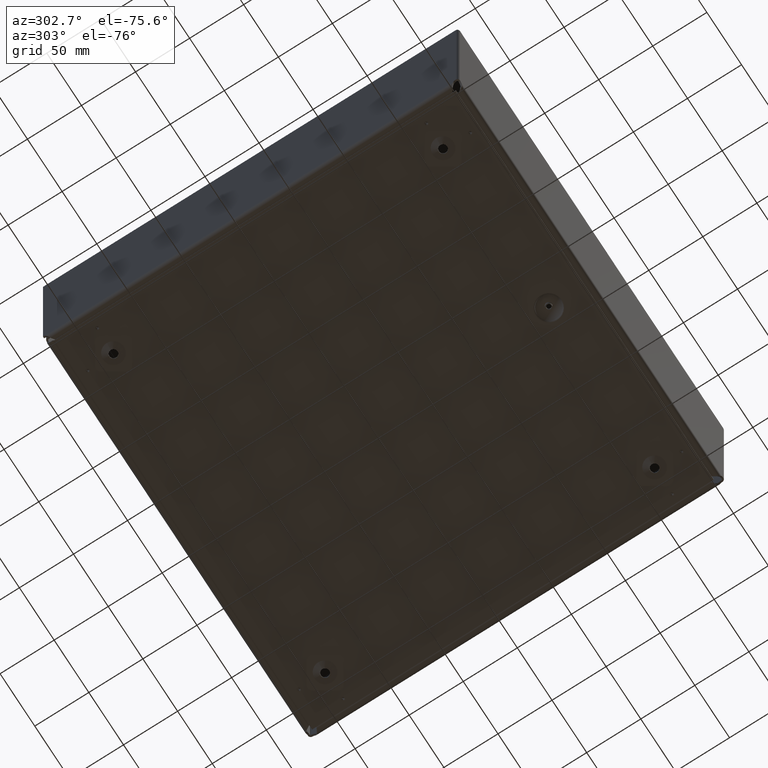
[diagram: clean part render]
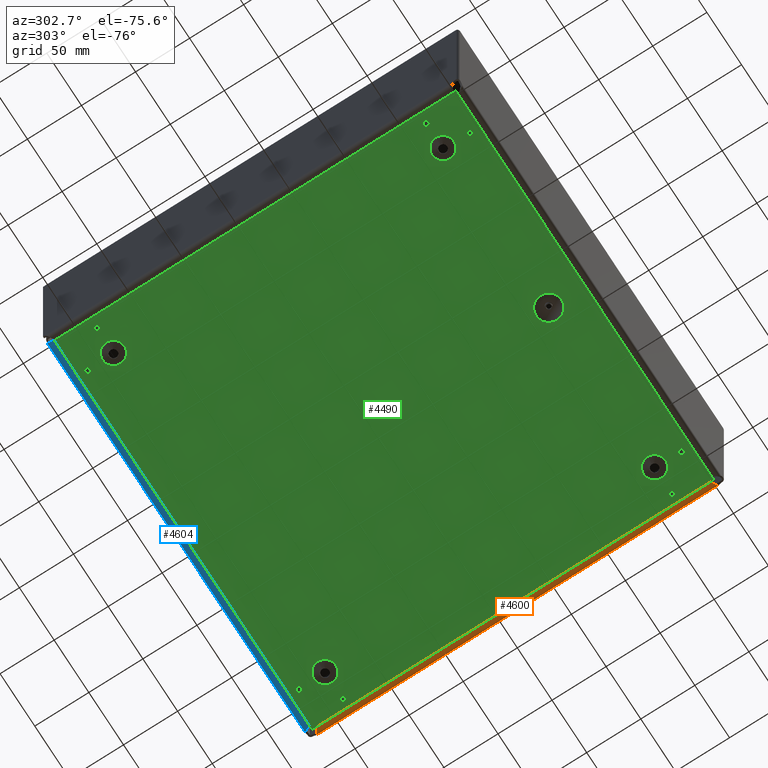
[diagram: same view with three faces highlighted in distinct colors, each labeled with its STEP entity id]
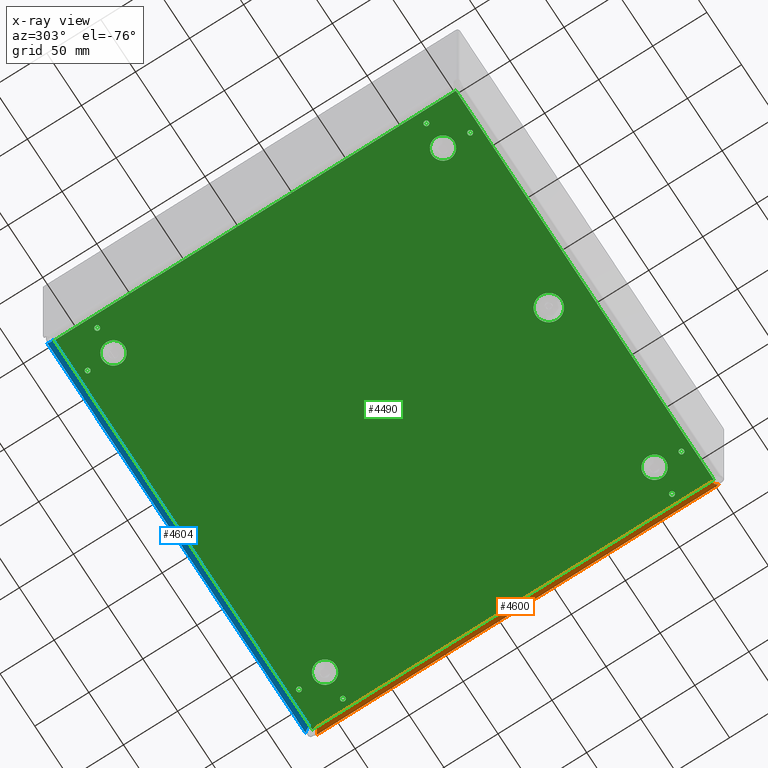
[diagram: x-ray of the same camera — body ghosted, the three highlighted faces saturated]
A machine part, auxiliary view with three faces highlighted in distinct colors.
The next image is the same camera in x-ray (body ghosted, the three faces saturated) — at least one of them is partly hidden behind the body in this view.
Their STEP definitions:

[orange] entity #4600 — the highlighted cylindrical surface (edge-blend (fillet) strip) has radius 3.956 mm, axis along (-0, 1, -0).
#77=B_SPLINE_CURVE_WITH_KNOTS($,3,(#7453,#7454,#7455,#7456,#7457,#7458,
#7459,#7460,#7461,#7462,#7463,#7464,#7465),.UNSPECIFIED.,.F.,.F.,(4,3,3,
3,4),(0.,0.73271112847062,1.46542225694132,1.83177782117667,2.56448894964734),
 .UNSPECIFIED.);
#80=B_SPLINE_CURVE_WITH_KNOTS($,3,(#7533,#7534,#7535,#7536,#7537,#7538,
#7539,#7540,#7541,#7542,#7543,#7544,#7545),.UNSPECIFIED.,.F.,.F.,(4,3,3,
3,4),(0.,0.366355564235345,1.09906669270604,1.83177782117674,2.56448894964732),
 .UNSPECIFIED.);
#361=LINE($,#7821,#712);
#362=LINE($,#7823,#713);
#712=VECTOR($,#5671,14.2780788216739);
#713=VECTOR($,#5674,14.7207532264134);
#1044=CYLINDRICAL_SURFACE($,#4949,0.155749999999782);
#1325=FACE_OUTER_BOUND($,#1668,.T.);
#1668=EDGE_LOOP($,(#3453,#3454,#3455,#3456));
#2164=VERTEX_POINT($,#7406);
#2171=VERTEX_POINT($,#7421);
#2172=VERTEX_POINT($,#7452);
#2179=VERTEX_POINT($,#7531);
#2597=EDGE_CURVE($,#2172,#2171,#77,.T.);
#2606=EDGE_CURVE($,#2164,#2179,#80,.T.);
#2670=EDGE_CURVE($,#2172,#2179,#361,.T.);
#2671=EDGE_CURVE($,#2171,#2164,#362,.T.);
#3453=ORIENTED_EDGE($,*,*,#2606,.T.);
#3454=ORIENTED_EDGE($,*,*,#2670,.F.);
#3455=ORIENTED_EDGE($,*,*,#2597,.T.);
#3456=ORIENTED_EDGE($,*,*,#2671,.T.);
#4600=ADVANCED_FACE($,(#1325),#1044,.T.);
#4949=AXIS2_PLACEMENT_3D($,#7822,#5672,#5673);
#5671=DIRECTION($,(1.,-5.74594200816914E-017,9.47285854941344E-014));
#5672=DIRECTION('center_axis',(-1.,4.15095611572944E-018,-9.46467030761971E-014));
#5673=DIRECTION('ref_axis',(4.15095611559543E-018,1.,1.41375957687081E-015));
#5674=DIRECTION($,(1.,-4.15095611572916E-018,9.46537930789197E-014));
#7406=CARTESIAN_POINT('',(7.38534819743018,3.09375,-29.8970722833427));
#7421=CARTESIAN_POINT('',(-7.33540502898322,3.09375,-29.8970722833441));
#7452=CARTESIAN_POINT('',(-7.12093855384791,3.17872704396148,-30.1833480068609));
#7453=CARTESIAN_POINT('Ctrl Pts',(-7.12093855384791,3.1787270439615,-30.1833480068609));
#7454=CARTESIAN_POINT('Ctrl Pts',(-7.14136393243222,3.21060626068565,-30.1625934649359));
#7455=CARTESIAN_POINT('Ctrl Pts',(-7.16178931101654,3.23444882105545,-30.1296156998862));
#7456=CARTESIAN_POINT('Ctrl Pts',(-7.18221468960085,3.24421127851084,-30.0929629142979));
#7457=CARTESIAN_POINT('Ctrl Pts',(-7.20264006818517,3.25397373596623,-30.0563101287096));
#7458=CARTESIAN_POINT('Ctrl Pts',(-7.22306544676949,3.2496560905072,-30.0159823225826));
#7459=CARTESIAN_POINT('Ctrl Pts',(-7.24349082535381,3.23245064685074,-29.9820768429875));
#7460=CARTESIAN_POINT('Ctrl Pts',(-7.25370351464597,3.2238479250225,-29.9651241031899));
#7461=CARTESIAN_POINT('Ctrl Pts',(-7.26391620393812,3.21202325364491,-29.9497769450253));
#7462=CARTESIAN_POINT('Ctrl Pts',(-7.27412889323028,3.19785302922986,-29.9370999123209));
#7463=CARTESIAN_POINT('Ctrl Pts',(-7.29455427181459,3.16951258039975,-29.911745846912));
#7464=CARTESIAN_POINT('Ctrl Pts',(-7.31497965039891,3.13178991941978,-29.897072283344));
#7465=CARTESIAN_POINT('Ctrl Pts',(-7.33540502898322,3.09375,-29.8970722833441));
#7531=CARTESIAN_POINT('',(7.15714026782595,3.17872704396148,-30.1833480068595));
#7533=CARTESIAN_POINT('Ctrl Pts',(7.38534819743018,3.09375,-29.8970722833427));
#7534=CARTESIAN_POINT('Ctrl Pts',(7.37448115316331,3.11276995970989,-29.8970722833427));
#7535=CARTESIAN_POINT('Ctrl Pts',(7.36361410889644,3.13182284263769,-29.9005055847682));
#7536=CARTESIAN_POINT('Ctrl Pts',(7.35274706462957,3.14956442735704,-29.9073230613626));
#7537=CARTESIAN_POINT('Ctrl Pts',(7.33101297609583,3.18504759679572,-29.9209580145515));
#7538=CARTESIAN_POINT('Ctrl Pts',(7.30927888756209,3.21528557340054,-29.9481296684165));
#7539=CARTESIAN_POINT('Ctrl Pts',(7.28754479902836,3.23252964925188,-29.9819505847785));
#7540=CARTESIAN_POINT('Ctrl Pts',(7.26581071049462,3.24977372510322,-30.0157715011405));
#7541=CARTESIAN_POINT('Ctrl Pts',(7.24407662196088,3.25402390020107,-30.0562416799996));
#7542=CARTESIAN_POINT('Ctrl Pts',(7.22234253342715,3.24423203409667,-30.0929471709481));
#7543=CARTESIAN_POINT('Ctrl Pts',(7.20060844489342,3.23444016799227,-30.1296526618966));
#7544=CARTESIAN_POINT('Ctrl Pts',(7.17887435635969,3.21060626068561,-30.1625934649345));
#7545=CARTESIAN_POINT('Ctrl Pts',(7.15714026782595,3.17872704396147,-30.1833480068595));
#7821=CARTESIAN_POINT($,(2.48969698750586E-013,3.17872704396148,-30.1833480068602));
#7822=CARTESIAN_POINT('Origin',(2.37780049368537E-013,3.09374999999999,
-30.0528222833434));
#7823=CARTESIAN_POINT($,(7.60696485556299,3.09375,-29.8970722833427));

[blue] entity #4604 — the highlighted cylindrical surface (edge-blend (fillet) strip) has radius 3.956 mm, axis along (-1, -0, 0).
#38=ELLIPSE($,#4955,0.220263762339615,0.155749999999998);
#73=B_SPLINE_CURVE_WITH_KNOTS($,3,(#7321,#7322,#7323,#7324,#7325,#7326,
#7327,#7328,#7329,#7330,#7331,#7332,#7333),.UNSPECIFIED.,.F.,.F.,(4,3,3,
3,4),(0.,0.366355564235334,1.09906669270601,1.83177782117669,2.56448894964735),
 .UNSPECIFIED.);
#366=LINE($,#7834,#717);
#373=LINE($,#7848,#724);
#717=VECTOR($,#5686,14.6672593646461);
#724=VECTOR($,#5695,14.3900917625199);
#1046=CYLINDRICAL_SURFACE($,#4954,0.1557499999979);
#1329=FACE_OUTER_BOUND($,#1672,.T.);
#1672=EDGE_LOOP($,(#3479,#3480,#3481,#3482,#3483,#3484));
#1935=CIRCLE($,#4956,0.155750000000038);
#1936=CIRCLE($,#4957,0.15575000000004);
#2147=VERTEX_POINT($,#7271);
#2151=VERTEX_POINT($,#7320);
#2218=VERTEX_POINT($,#7833);
#2224=VERTEX_POINT($,#7847);
#2225=VERTEX_POINT($,#7849);
#2226=VERTEX_POINT($,#7851);
#2572=EDGE_CURVE($,#2151,#2147,#73,.T.);
#2676=EDGE_CURVE($,#2151,#2218,#366,.T.);
#2683=EDGE_CURVE($,#2224,#2147,#373,.T.);
#2684=EDGE_CURVE($,#2225,#2224,#38,.T.);
#2685=EDGE_CURVE($,#2226,#2225,#1935,.T.);
#2686=EDGE_CURVE($,#2218,#2226,#1936,.T.);
#3479=ORIENTED_EDGE($,*,*,#2572,.T.);
#3480=ORIENTED_EDGE($,*,*,#2683,.F.);
#3481=ORIENTED_EDGE($,*,*,#2684,.F.);
#3482=ORIENTED_EDGE($,*,*,#2685,.F.);
#3483=ORIENTED_EDGE($,*,*,#2686,.F.);
#3484=ORIENTED_EDGE($,*,*,#2676,.F.);
#4604=ADVANCED_FACE($,(#1329),#1046,.T.);
#4954=AXIS2_PLACEMENT_3D($,#7846,#5693,#5694);
#4955=AXIS2_PLACEMENT_3D($,#7850,#5696,#5697);
#4956=AXIS2_PLACEMENT_3D($,#7852,#5698,#5699);
#4957=AXIS2_PLACEMENT_3D($,#7853,#5700,#5701);
#5686=DIRECTION($,(6.02376719947043E-014,-4.62700146612674E-031,-1.));
#5693=DIRECTION('center_axis',(6.03083160806297E-014,-7.29422913135787E-030,
-1.));
#5694=DIRECTION('ref_axis',(-2.5678042021844E-014,1.,-1.54991264950235E-027));
#5695=DIRECTION($,(-6.02195600087657E-014,5.77834653387141E-017,1.));
#5696=DIRECTION('center_axis',(0.707106781186614,8.30565910811656E-014,
-0.707106781186481));
#5697=DIRECTION('ref_axis',(0.707106781186481,1.1051453555507E-013,0.707106781186615));
#5698=DIRECTION('center_axis',(6.03083160806297E-014,-7.29422913135787E-030,
-1.));
#5699=DIRECTION('ref_axis',(-4.49022848396713E-014,1.,0.));
#5700=DIRECTION('center_axis',(6.03083160806297E-014,-7.29422913135787E-030,
-1.));
#5701=DIRECTION('ref_axis',(-1.,3.36767136297529E-014,-7.1843655743473E-014));
#7271=CARTESIAN_POINT('',(-7.27622427648296,3.17872704396147,-30.3386337294959));
#7320=CARTESIAN_POINT('',(-7.56249999999976,3.09375,-30.1241672543607));
#7321=CARTESIAN_POINT('Ctrl Pts',(-7.56249999999983,3.09375,-30.1241672543607));
#7322=CARTESIAN_POINT('Ctrl Pts',(-7.56249999999983,3.11276995970989,-30.1343799436528));
#7323=CARTESIAN_POINT('Ctrl Pts',(-7.55906671581271,3.13182283530101,-30.144592632945));
#7324=CARTESIAN_POINT('Ctrl Pts',(-7.55224925228345,3.14956441408007,-30.1548053222371));
#7325=CARTESIAN_POINT('Ctrl Pts',(-7.53861432522495,3.18504757163819,-30.1752307008214));
#7326=CARTESIAN_POINT('Ctrl Pts',(-7.51144268079794,3.21528554194808,-30.1956560794058));
#7327=CARTESIAN_POINT('Ctrl Pts',(-7.47762177586498,3.23252960979849,-30.2160814579901));
#7328=CARTESIAN_POINT('Ctrl Pts',(-7.44380087093202,3.24977367764891,-30.2365068365744));
#7329=CARTESIAN_POINT('Ctrl Pts',(-7.40333070549312,3.25402384303984,-30.2569322151587));
#7330=CARTESIAN_POINT('Ctrl Pts',(-7.3666251923621,3.24423198879903,-30.277357593743));
#7331=CARTESIAN_POINT('Ctrl Pts',(-7.32991967923109,3.23444013455822,-30.2977829723273));
#7332=CARTESIAN_POINT('Ctrl Pts',(-7.29697881840796,3.21060626068566,-30.3182083509116));
#7333=CARTESIAN_POINT('Ctrl Pts',(-7.27622427648292,3.1787270439615,-30.3386337294959));
#7833=CARTESIAN_POINT('',(-7.56249999999887,3.09375,-44.7914266190068));
#7834=CARTESIAN_POINT($,(-7.56249999999977,3.09375,-29.8526074277814));
#7846=CARTESIAN_POINT('Origin',(-7.40674999999931,3.09374999999999,-37.3908744511754));
#7847=CARTESIAN_POINT('',(-7.2762242764821,3.17872704396148,-44.7287254920158));
#7848=CARTESIAN_POINT($,(-7.27622427648253,3.17872704396147,-37.4578786531367));
#7849=CARTESIAN_POINT('',(-7.33892540347311,3.23395658545921,-44.7914266190068));
#7850=CARTESIAN_POINT('Origin',(-7.40674999999579,3.0937499999967,-44.8592512155325));
#7851=CARTESIAN_POINT('',(-7.40674999999887,3.24950000000003,-44.7914266190068));
#7852=CARTESIAN_POINT('Origin',(-7.40674999999887,3.09374999999999,-44.7914266190068));
#7853=CARTESIAN_POINT('Origin',(-7.40674999999887,3.09374999999999,-44.7914266190068));

[green] entity #4490 — the highlighted planar face has unit normal (0, 0, -1).
#223=LINE($,#6441,#574);
#224=LINE($,#6443,#575);
#225=LINE($,#6445,#576);
#226=LINE($,#6446,#577);
#574=VECTOR($,#5245,14.625);
#575=VECTOR($,#5246,14.625);
#576=VECTOR($,#5247,14.625);
#577=VECTOR($,#5248,14.625);
#923=PLANE($,#4798);
#1126=FACE_BOUND($,#1506,.T.);
#1127=FACE_BOUND($,#1507,.T.);
#1128=FACE_BOUND($,#1508,.T.);
#1129=FACE_BOUND($,#1509,.T.);
#1130=FACE_BOUND($,#1510,.T.);
#1131=FACE_BOUND($,#1511,.T.);
#1132=FACE_BOUND($,#1512,.T.);
#1133=FACE_BOUND($,#1513,.T.);
#1134=FACE_BOUND($,#1514,.T.);
#1135=FACE_BOUND($,#1515,.T.);
#1136=FACE_BOUND($,#1516,.T.);
#1137=FACE_BOUND($,#1517,.T.);
#1138=FACE_BOUND($,#1518,.T.);
#1139=FACE_BOUND($,#1519,.T.);
#1506=EDGE_LOOP($,(#3030));
#1507=EDGE_LOOP($,(#3031));
#1508=EDGE_LOOP($,(#3032));
#1509=EDGE_LOOP($,(#3033));
#1510=EDGE_LOOP($,(#3034));
#1511=EDGE_LOOP($,(#3035));
#1512=EDGE_LOOP($,(#3036));
#1513=EDGE_LOOP($,(#3037,#3038,#3039,#3040));
#1514=EDGE_LOOP($,(#3041));
#1515=EDGE_LOOP($,(#3042));
#1516=EDGE_LOOP($,(#3043));
#1517=EDGE_LOOP($,(#3044));
#1518=EDGE_LOOP($,(#3045));
#1519=EDGE_LOOP($,(#3046));
#1846=CIRCLE($,#4767,0.466155628348878);
#1868=CIRCLE($,#4797,0.0898817580215496);
#1869=CIRCLE($,#4799,0.0898817580215494);
#1870=CIRCLE($,#4800,0.0898817580215488);
#1871=CIRCLE($,#4801,0.0898817580215488);
#1872=CIRCLE($,#4802,0.0898817580215494);
#1873=CIRCLE($,#4803,0.402);
#1874=CIRCLE($,#4804,0.402);
#1875=CIRCLE($,#4805,0.402000000000002);
#1876=CIRCLE($,#4806,0.402000000000002);
#1877=CIRCLE($,#4807,0.0898817580215496);
#1878=CIRCLE($,#4808,0.0898817580215488);
#1879=CIRCLE($,#4809,0.0898817580215488);
#1987=VERTEX_POINT($,#6304);
#2013=VERTEX_POINT($,#6424);
#2014=VERTEX_POINT($,#6427);
#2015=VERTEX_POINT($,#6429);
#2016=VERTEX_POINT($,#6431);
#2017=VERTEX_POINT($,#6433);
#2018=VERTEX_POINT($,#6435);
#2019=VERTEX_POINT($,#6437);
#2020=VERTEX_POINT($,#6439);
#2021=VERTEX_POINT($,#6440);
#2022=VERTEX_POINT($,#6442);
#2023=VERTEX_POINT($,#6444);
#2024=VERTEX_POINT($,#6447);
#2025=VERTEX_POINT($,#6449);
#2026=VERTEX_POINT($,#6451);
#2027=VERTEX_POINT($,#6453);
#2028=VERTEX_POINT($,#6455);
#2388=EDGE_CURVE($,#1987,#1987,#1846,.T.);
#2416=EDGE_CURVE($,#2013,#2013,#1868,.T.);
#2417=EDGE_CURVE($,#2014,#2014,#1869,.T.);
#2418=EDGE_CURVE($,#2015,#2015,#1870,.T.);
#2419=EDGE_CURVE($,#2016,#2016,#1871,.T.);
#2420=EDGE_CURVE($,#2017,#2017,#1872,.T.);
#2421=EDGE_CURVE($,#2018,#2018,#1873,.T.);
#2422=EDGE_CURVE($,#2019,#2019,#1874,.T.);
#2423=EDGE_CURVE($,#2020,#2021,#223,.T.);
#2424=EDGE_CURVE($,#2022,#2020,#224,.T.);
#2425=EDGE_CURVE($,#2023,#2022,#225,.T.);
#2426=EDGE_CURVE($,#2021,#2023,#226,.T.);
#2427=EDGE_CURVE($,#2024,#2024,#1875,.T.);
#2428=EDGE_CURVE($,#2025,#2025,#1876,.T.);
#2429=EDGE_CURVE($,#2026,#2026,#1877,.T.);
#2430=EDGE_CURVE($,#2027,#2027,#1878,.T.);
#2431=EDGE_CURVE($,#2028,#2028,#1879,.T.);
#3030=ORIENTED_EDGE($,*,*,#2388,.T.);
#3031=ORIENTED_EDGE($,*,*,#2417,.F.);
#3032=ORIENTED_EDGE($,*,*,#2418,.F.);
#3033=ORIENTED_EDGE($,*,*,#2419,.F.);
#3034=ORIENTED_EDGE($,*,*,#2420,.F.);
#3035=ORIENTED_EDGE($,*,*,#2421,.T.);
#3036=ORIENTED_EDGE($,*,*,#2422,.T.);
#3037=ORIENTED_EDGE($,*,*,#2423,.F.);
#3038=ORIENTED_EDGE($,*,*,#2424,.F.);
#3039=ORIENTED_EDGE($,*,*,#2425,.F.);
#3040=ORIENTED_EDGE($,*,*,#2426,.F.);
#3041=ORIENTED_EDGE($,*,*,#2427,.T.);
#3042=ORIENTED_EDGE($,*,*,#2428,.T.);
#3043=ORIENTED_EDGE($,*,*,#2429,.F.);
#3044=ORIENTED_EDGE($,*,*,#2430,.F.);
#3045=ORIENTED_EDGE($,*,*,#2431,.F.);
#3046=ORIENTED_EDGE($,*,*,#2416,.F.);
#4490=ADVANCED_FACE($,(#1126,#1127,#1128,#1129,#1130,#1131,#1132,#1133,
#1134,#1135,#1136,#1137,#1138,#1139),#923,.T.);
#4767=AXIS2_PLACEMENT_3D($,#6305,#5165,#5166);
#4797=AXIS2_PLACEMENT_3D($,#6425,#5229,#5230);
#4798=AXIS2_PLACEMENT_3D($,#6426,#5231,#5232);
#4799=AXIS2_PLACEMENT_3D($,#6428,#5233,#5234);
#4800=AXIS2_PLACEMENT_3D($,#6430,#5235,#5236);
#4801=AXIS2_PLACEMENT_3D($,#6432,#5237,#5238);
#4802=AXIS2_PLACEMENT_3D($,#6434,#5239,#5240);
#4803=AXIS2_PLACEMENT_3D($,#6436,#5241,#5242);
#4804=AXIS2_PLACEMENT_3D($,#6438,#5243,#5244);
#4805=AXIS2_PLACEMENT_3D($,#6448,#5249,#5250);
#4806=AXIS2_PLACEMENT_3D($,#6450,#5251,#5252);
#4807=AXIS2_PLACEMENT_3D($,#6452,#5253,#5254);
#4808=AXIS2_PLACEMENT_3D($,#6454,#5255,#5256);
#4809=AXIS2_PLACEMENT_3D($,#6456,#5257,#5258);
#5165=DIRECTION('center_axis',(1.07057564838338E-032,3.06161699786838E-017,
-1.));
#5166=DIRECTION('ref_axis',(-1.,0.,-1.07057564838338E-032));
#5229=DIRECTION('center_axis',(-3.6288475009662E-033,3.06161699786838E-017,
1.));
#5230=DIRECTION('ref_axis',(-1.,0.,-3.6288475009662E-033));
#5231=DIRECTION('center_axis',(0.,0.,1.));
#5232=DIRECTION('ref_axis',(1.,0.,0.));
#5233=DIRECTION('center_axis',(6.6267073910302E-016,3.06161699786839E-017,
1.));
#5234=DIRECTION('ref_axis',(-1.,0.,6.6267073910302E-016));
#5235=DIRECTION('center_axis',(5.96403665192718E-015,3.06161699786845E-017,
1.));
#5236=DIRECTION('ref_axis',(-1.,0.,5.96403665192718E-015));
#5237=DIRECTION('center_axis',(5.96403665192718E-015,3.06161699786845E-017,
1.));
#5238=DIRECTION('ref_axis',(-1.,0.,5.96403665192718E-015));
#5239=DIRECTION('center_axis',(-3.6288475009662E-033,3.06161699786838E-017,
1.));
#5240=DIRECTION('ref_axis',(-1.,0.,-3.6288475009662E-033));
#5241=DIRECTION('center_axis',(0.,0.,-1.));
#5242=DIRECTION('ref_axis',(-1.,-4.70553136425286E-016,-1.54001762245493E-016));
#5243=DIRECTION('center_axis',(0.,0.,-1.));
#5244=DIRECTION('ref_axis',(-1.,-1.21443243902078E-018,-1.54001762245493E-016));
#5245=DIRECTION($,(-3.06161699786838E-016,1.,0.));
#5246=DIRECTION($,(-1.,0.,0.));
#5247=DIRECTION($,(1.912760578128E-016,-1.,0.));
#5248=DIRECTION($,(1.,1.912760578128E-016,0.));
#5249=DIRECTION('center_axis',(0.,0.,-1.));
#5250=DIRECTION('ref_axis',(-1.,-1.21443243902078E-018,-1.54001762245493E-016));
#5251=DIRECTION('center_axis',(0.,0.,-1.));
#5252=DIRECTION('ref_axis',(-1.,-4.70553136425286E-016,-1.54001762245493E-016));
#5253=DIRECTION('center_axis',(-3.6288475009662E-033,3.06161699786838E-017,
1.));
#5254=DIRECTION('ref_axis',(-1.,0.,-3.6288475009662E-033));
#5255=DIRECTION('center_axis',(5.96403665192718E-015,3.06161699786845E-017,
1.));
#5256=DIRECTION('ref_axis',(-1.,0.,5.96403665192718E-015));
#5257=DIRECTION('center_axis',(5.96403665192718E-015,3.06161699786845E-017,
1.));
#5258=DIRECTION('ref_axis',(-1.,0.,5.96403665192718E-015));
#6304=CARTESIAN_POINT('',(6.84634437165112,13.3125,0.0625000000000001));
#6305=CARTESIAN_POINT('Origin',(7.3125,13.3125,0.0625000000000002));
#6424=CARTESIAN_POINT('',(0.290126937371007,1.32,0.0625));
#6425=CARTESIAN_POINT('Origin',(0.380008695392557,1.32,0.0625000000000002));
#6426=CARTESIAN_POINT('Origin',(7.3125,7.3125,0.0625));
#6427=CARTESIAN_POINT('',(1.26512693737101,0.345,0.0625));
#6428=CARTESIAN_POINT('Origin',(1.35500869539256,0.345,0.0625000000000042));
#6429=CARTESIAN_POINT('',(14.225126937371,1.32,0.0625));
#6430=CARTESIAN_POINT('Origin',(14.3150086953926,1.32,0.0624999999999584));
#6431=CARTESIAN_POINT('',(13.250126937371,14.275,0.0625));
#6432=CARTESIAN_POINT('Origin',(13.3400086953926,14.275,0.0624999999999638));
#6433=CARTESIAN_POINT('',(1.26512693737101,14.275,0.0625));
#6434=CARTESIAN_POINT('Origin',(1.35500869539255,14.275,0.0624999999999998));
#6435=CARTESIAN_POINT('',(0.910499999999992,1.3125,0.0625));
#6436=CARTESIAN_POINT('Origin',(1.31249999999999,1.3125,0.0624999999999995));
#6437=CARTESIAN_POINT('',(0.910499999999996,13.3125,0.0625));
#6438=CARTESIAN_POINT('Origin',(1.3125,13.3125,0.0624999999999987));
#6439=CARTESIAN_POINT('',(0.,0.,0.0625));
#6440=CARTESIAN_POINT('',(-4.47761485938251E-015,14.625,0.0625));
#6441=CARTESIAN_POINT($,(-4.47761485938251E-015,14.625,0.0625));
#6442=CARTESIAN_POINT('',(14.625,0.,0.0625));
#6443=CARTESIAN_POINT($,(0.,0.,0.0625));
#6444=CARTESIAN_POINT('',(14.625,14.625,0.0625));
#6445=CARTESIAN_POINT($,(14.625,0.,0.0625));
#6446=CARTESIAN_POINT($,(14.625,14.625,0.0625));
#6447=CARTESIAN_POINT('',(12.9105,13.3125,0.0625));
#6448=CARTESIAN_POINT('Origin',(13.3125,13.3125,0.0625000000000005));
#6449=CARTESIAN_POINT('',(12.9105,1.3125,0.0625));
#6450=CARTESIAN_POINT('Origin',(13.3125,1.3125,0.0625000000000013));
#6451=CARTESIAN_POINT('',(0.290126937371005,13.305,0.0625));
#6452=CARTESIAN_POINT('Origin',(0.380008695392555,13.305,0.0624999999999998));
#6453=CARTESIAN_POINT('',(14.225126937371,13.305,0.0625));
#6454=CARTESIAN_POINT('Origin',(14.3150086953926,13.305,0.062499999999958));
#6455=CARTESIAN_POINT('',(13.250126937371,0.345,0.0625));
#6456=CARTESIAN_POINT('Origin',(13.3400086953926,0.345,0.0624999999999643));